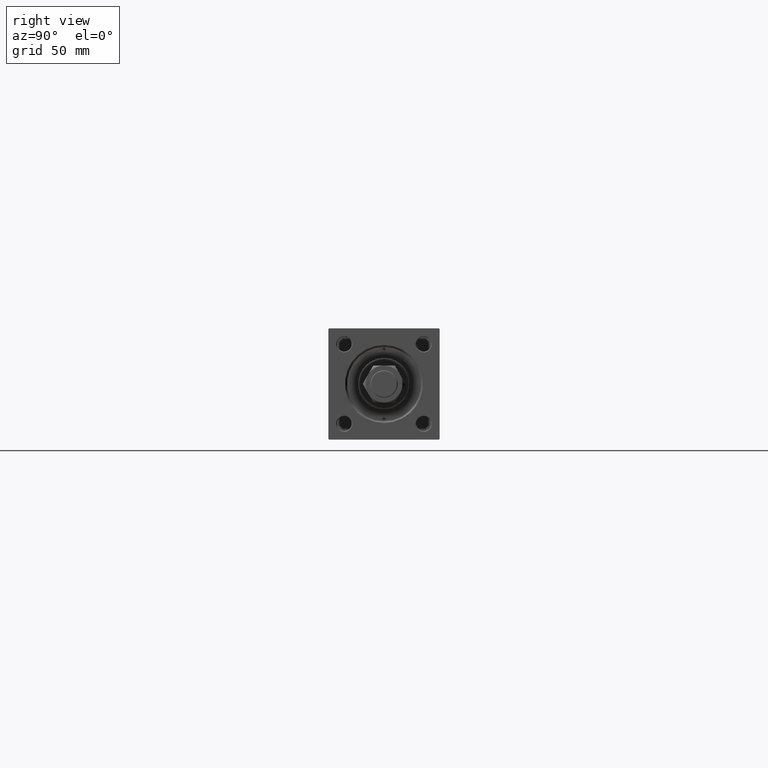
[diagram: clean part render]
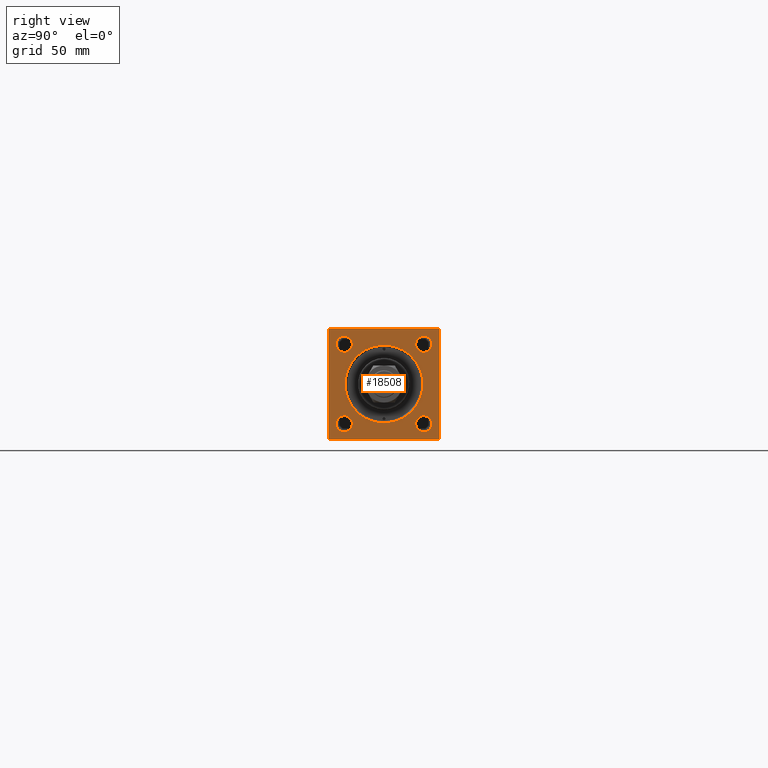
[diagram: same view with one face highlighted and labeled with its STEP entity id]
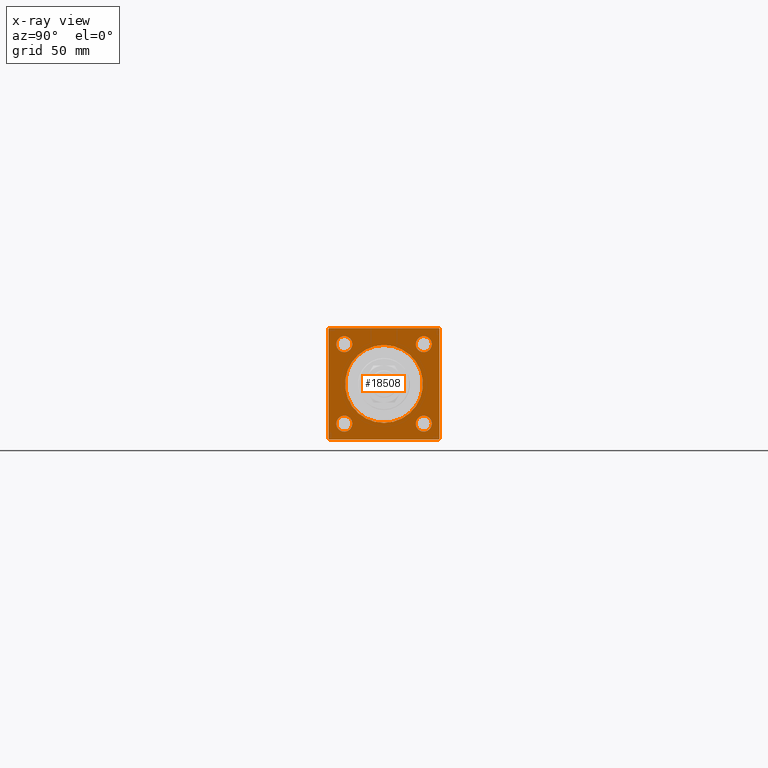
[diagram: x-ray of the same camera — body ghosted, the highlighted face saturated]
A machine part, right view. The second image highlights one B-rep face of the part: STEP entity #18508.
The next image is the same camera in x-ray: the body ghosted, the highlighted face saturated — about 0% of this face is hidden behind the body in this view.
In plain terms, the highlighted planar face has unit normal (-1, 0, 0).
Its self-contained STEP definition (entity closure, byte-faithful):
#464 = AXIS2_PLACEMENT_3D ( 'NONE', #23746, #3755, #35839 ) ;
#783 = CIRCLE ( 'NONE', #47861, 31.49999999999997158 ) ;
#1887 = DIRECTION ( 'NONE',  ( -1.000000000000000000, -0.000000000000000000, -0.000000000000000000 ) ) ;
#1899 = VERTEX_POINT ( 'NONE', #42348 ) ;
#1959 = ORIENTED_EDGE ( 'NONE', *, *, #29288, .T. ) ;
#2225 = VERTEX_POINT ( 'NONE', #23778 ) ;
#3096 = DIRECTION ( 'NONE',  ( -1.000000000000000000, -0.000000000000000000, -0.000000000000000000 ) ) ;
#3755 = DIRECTION ( 'NONE',  ( -1.000000000000000000, -0.000000000000000000, -0.000000000000000000 ) ) ;
#3829 = VERTEX_POINT ( 'NONE', #36399 ) ;
#4102 = VECTOR ( 'NONE', #15631, 1000.000000000000000 ) ;
#4209 = CARTESIAN_POINT ( 'NONE',  ( 485.0000000000000000, -44.49999999999997158, 44.99999999999998579 ) ) ;
#4418 = CARTESIAN_POINT ( 'NONE',  ( 485.0000000000000000, 32.14999999999999147, -38.65000000000012648 ) ) ;
#5127 = EDGE_CURVE ( 'NONE', #34431, #46237, #37075, .T. ) ;
#5428 = VERTEX_POINT ( 'NONE', #4209 ) ;
#5549 = EDGE_CURVE ( 'NONE', #5428, #2225, #37054, .T. ) ;
#6290 = VERTEX_POINT ( 'NONE', #48792 ) ;
#6608 = AXIS2_PLACEMENT_3D ( 'NONE', #47624, #11570, #16032 ) ;
#7727 = CARTESIAN_POINT ( 'NONE',  ( 485.0000000000000000, 32.14999999999999147, 25.64999999999989555 ) ) ;
#8022 = DIRECTION ( 'NONE',  ( 0.000000000000000000, 0.000000000000000000, 1.000000000000000000 ) ) ;
#8103 = EDGE_LOOP ( 'NONE', ( #27663, #13987 ) ) ;
#8250 = CARTESIAN_POINT ( 'NONE',  ( 485.0000000000000000, 44.49999999999990052, 45.00000000000000000 ) ) ;
#8306 = CARTESIAN_POINT ( 'NONE',  ( 485.0000000000000000, 45.00000000000001421, -44.49999999999991473 ) ) ;
#8896 = DIRECTION ( 'NONE',  ( 0.000000000000000000, -1.000000000000000000, 0.000000000000000000 ) ) ;
#9479 = VERTEX_POINT ( 'NONE', #16820 ) ;
#10212 = VECTOR ( 'NONE', #25231, 1000.000000000000000 ) ;
#10286 = DIRECTION ( 'NONE',  ( -1.000000000000000000, -0.000000000000000000, -0.000000000000000000 ) ) ;
#10636 = DIRECTION ( 'NONE',  ( 0.000000000000000000, 0.000000000000000000, 1.000000000000000000 ) ) ;
#10726 = ORIENTED_EDGE ( 'NONE', *, *, #51096, .T. ) ;
#11147 = VECTOR ( 'NONE', #50469, 1000.000000000000000 ) ;
#11400 = DIRECTION ( 'NONE',  ( -0.000000000000000000, 0.7071067811865081598, 0.7071067811865867636 ) ) ;
#11570 = DIRECTION ( 'NONE',  ( -1.000000000000000000, -0.000000000000000000, -0.000000000000000000 ) ) ;
#13321 = AXIS2_PLACEMENT_3D ( 'NONE', #43933, #51835, #39968 ) ;
#13607 = FACE_BOUND ( 'NONE', #36231, .T. ) ;
#13923 = CARTESIAN_POINT ( 'NONE',  ( 485.0000000000000000, -32.15000000000001279, -38.65000000000012648 ) ) ;
#13987 = ORIENTED_EDGE ( 'NONE', *, *, #5127, .T. ) ;
#14046 = DIRECTION ( 'NONE',  ( 0.000000000000000000, 0.000000000000000000, 1.000000000000000000 ) ) ;
#14584 = ORIENTED_EDGE ( 'NONE', *, *, #35922, .T. ) ;
#15631 = DIRECTION ( 'NONE',  ( 0.000000000000000000, -0.7071067811865867636, 0.7071067811865081598 ) ) ;
#15660 = DIRECTION ( 'NONE',  ( -1.000000000000000000, -0.000000000000000000, -0.000000000000000000 ) ) ;
#15863 = LINE ( 'NONE', #35067, #43948 ) ;
#16032 = DIRECTION ( 'NONE',  ( 0.000000000000000000, 0.000000000000000000, 1.000000000000000000 ) ) ;
#16654 = EDGE_CURVE ( 'NONE', #39213, #3829, #28789, .T. ) ;
#16820 = CARTESIAN_POINT ( 'NONE',  ( 485.0000000000000000, 3.857637417314158745E-15, 31.49999999999997158 ) ) ;
#16842 = ORIENTED_EDGE ( 'NONE', *, *, #30174, .T. ) ;
#16919 = CARTESIAN_POINT ( 'NONE',  ( 485.0000000000000000, -45.00000000000000000, 44.99999999999998579 ) ) ;
#17153 = ORIENTED_EDGE ( 'NONE', *, *, #30298, .T. ) ;
#18017 = DIRECTION ( 'NONE',  ( -1.000000000000000000, -0.000000000000000000, -0.000000000000000000 ) ) ;
#18380 = VECTOR ( 'NONE', #37419, 1000.000000000000000 ) ;
#18508 = ADVANCED_FACE ( 'NONE', ( #18599, #13607, #25718, #50190, #41763, #50713 ), #26232, .F. ) ;
#18599 = FACE_BOUND ( 'NONE', #23121, .T. ) ;
#18710 = ORIENTED_EDGE ( 'NONE', *, *, #25625, .T. ) ;
#19047 = VERTEX_POINT ( 'NONE', #31276 ) ;
#19436 = DIRECTION ( 'NONE',  ( 0.000000000000000000, 0.000000000000000000, 1.000000000000000000 ) ) ;
#19575 = LINE ( 'NONE', #8250, #4102 ) ;
#20483 = CARTESIAN_POINT ( 'NONE',  ( 485.0000000000000000, 0.000000000000000000, 0.000000000000000000 ) ) ;
#20563 = EDGE_CURVE ( 'NONE', #42021, #1899, #23168, .T. ) ;
#21290 = CIRCLE ( 'NONE', #36406, 6.500000000000110134 ) ;
#21384 = ORIENTED_EDGE ( 'NONE', *, *, #47681, .T. ) ;
#21643 = VERTEX_POINT ( 'NONE', #23753 ) ;
#21747 = VERTEX_POINT ( 'NONE', #40571 ) ;
#21894 = CARTESIAN_POINT ( 'NONE',  ( 485.0000000000000000, -44.99999999999999289, -44.49999999999997158 ) ) ;
#22209 = EDGE_LOOP ( 'NONE', ( #17153, #36537, #28086, #21384, #43607, #16842, #40065, #28546 ) ) ;
#22319 = EDGE_CURVE ( 'NONE', #21643, #29126, #45682, .T. ) ;
#23121 = EDGE_LOOP ( 'NONE', ( #30720, #24481 ) ) ;
#23168 = CIRCLE ( 'NONE', #464, 6.500000000000110134 ) ;
#23403 = CIRCLE ( 'NONE', #28427, 6.500000000000117240 ) ;
#23746 = CARTESIAN_POINT ( 'NONE',  ( 485.0000000000000000, 32.14999999999999147, 32.15000000000000568 ) ) ;
#23753 = CARTESIAN_POINT ( 'NONE',  ( 485.0000000000000000, 45.00000000000001421, 44.49999999999994316 ) ) ;
#23766 = CIRCLE ( 'NONE', #32985, 6.500000000000117240 ) ;
#23778 = CARTESIAN_POINT ( 'NONE',  ( 485.0000000000000000, -45.00000000000000000, 44.49999999999992895 ) ) ;
#23932 = CARTESIAN_POINT ( 'NONE',  ( 485.0000000000000000, -32.15000000000001279, -25.64999999999988844 ) ) ;
#24481 = ORIENTED_EDGE ( 'NONE', *, *, #48625, .T. ) ;
#24923 = VECTOR ( 'NONE', #49362, 1000.000000000000000 ) ;
#25231 = DIRECTION ( 'NONE',  ( -0.000000000000000000, -0.7071067811865081598, -0.7071067811865867636 ) ) ;
#25625 = EDGE_CURVE ( 'NONE', #6290, #26412, #44480, .T. ) ;
#25718 = FACE_BOUND ( 'NONE', #8103, .T. ) ;
#26104 = CARTESIAN_POINT ( 'NONE',  ( 485.0000000000000000, 32.14999999999999147, 32.15000000000000568 ) ) ;
#26232 = PLANE ( 'NONE',  #36552 ) ;
#26366 = DIRECTION ( 'NONE',  ( 0.000000000000000000, 0.000000000000000000, 1.000000000000000000 ) ) ;
#26412 = VERTEX_POINT ( 'NONE', #35126 ) ;
#26424 = CARTESIAN_POINT ( 'NONE',  ( 485.0000000000000000, 32.14999999999999147, -32.15000000000000568 ) ) ;
#26663 = DIRECTION ( 'NONE',  ( -1.000000000000000000, -0.000000000000000000, -0.000000000000000000 ) ) ;
#27268 = DIRECTION ( 'NONE',  ( -1.000000000000000000, 0.000000000000000000, -0.000000000000000000 ) ) ;
#27552 = CARTESIAN_POINT ( 'NONE',  ( 485.0000000000000000, 0.000000000000000000, 0.000000000000000000 ) ) ;
#27663 = ORIENTED_EDGE ( 'NONE', *, *, #34416, .T. ) ;
#28086 = ORIENTED_EDGE ( 'NONE', *, *, #42670, .F. ) ;
#28427 = AXIS2_PLACEMENT_3D ( 'NONE', #26424, #18017, #10636 ) ;
#28546 = ORIENTED_EDGE ( 'NONE', *, *, #5549, .T. ) ;
#28677 = VERTEX_POINT ( 'NONE', #4418 ) ;
#28789 = LINE ( 'NONE', #44867, #30586 ) ;
#28881 = LINE ( 'NONE', #44958, #48083 ) ;
#29126 = VERTEX_POINT ( 'NONE', #8306 ) ;
#29275 = CIRCLE ( 'NONE', #6608, 6.500000000000117240 ) ;
#29288 = EDGE_CURVE ( 'NONE', #50147, #28677, #23403, .T. ) ;
#30021 = ORIENTED_EDGE ( 'NONE', *, *, #34443, .T. ) ;
#30174 = EDGE_CURVE ( 'NONE', #21643, #40119, #19575, .T. ) ;
#30298 = EDGE_CURVE ( 'NONE', #2225, #39213, #44566, .T. ) ;
#30586 = VECTOR ( 'NONE', #49583, 1000.000000000000000 ) ;
#30625 = AXIS2_PLACEMENT_3D ( 'NONE', #20483, #52076, #19436 ) ;
#30720 = ORIENTED_EDGE ( 'NONE', *, *, #20563, .T. ) ;
#31187 = CARTESIAN_POINT ( 'NONE',  ( 485.0000000000000000, 32.14999999999999147, -25.64999999999988844 ) ) ;
#31276 = CARTESIAN_POINT ( 'NONE',  ( 485.0000000000000000, 0.000000000000000000, -31.49999999999997158 ) ) ;
#32009 = DIRECTION ( 'NONE',  ( 0.000000000000000000, 0.000000000000000000, 1.000000000000000000 ) ) ;
#32985 = AXIS2_PLACEMENT_3D ( 'NONE', #37708, #26663, #14046 ) ;
#33279 = CARTESIAN_POINT ( 'NONE',  ( 485.0000000000000000, 45.00000000000001421, 45.00000000000000000 ) ) ;
#34416 = EDGE_CURVE ( 'NONE', #46237, #34431, #29275, .T. ) ;
#34431 = VERTEX_POINT ( 'NONE', #23932 ) ;
#34443 = EDGE_CURVE ( 'NONE', #26412, #6290, #36004, .T. ) ;
#35067 = CARTESIAN_POINT ( 'NONE',  ( 485.0000000000000000, 45.00000000000001421, -44.49999999999994316 ) ) ;
#35126 = CARTESIAN_POINT ( 'NONE',  ( 485.0000000000000000, -32.14999999999999147, 38.65000000000010516 ) ) ;
#35839 = DIRECTION ( 'NONE',  ( 0.000000000000000000, 0.000000000000000000, 1.000000000000000000 ) ) ;
#35922 = EDGE_CURVE ( 'NONE', #9479, #19047, #783, .T. ) ;
#36004 = CIRCLE ( 'NONE', #13321, 6.500000000000117240 ) ;
#36231 = EDGE_LOOP ( 'NONE', ( #18710, #30021 ) ) ;
#36399 = CARTESIAN_POINT ( 'NONE',  ( 485.0000000000000000, -44.49999999999990052, -45.00000000000000000 ) ) ;
#36406 = AXIS2_PLACEMENT_3D ( 'NONE', #26104, #1887, #26366 ) ;
#36537 = ORIENTED_EDGE ( 'NONE', *, *, #16654, .T. ) ;
#36552 = AXIS2_PLACEMENT_3D ( 'NONE', #38829, #27268, #43325 ) ;
#37033 = LINE ( 'NONE', #44964, #11147 ) ;
#37054 = LINE ( 'NONE', #49973, #10212 ) ;
#37075 = CIRCLE ( 'NONE', #42959, 6.500000000000117240 ) ;
#37419 = DIRECTION ( 'NONE',  ( 0.000000000000000000, 7.709882115452478166E-17, -1.000000000000000000 ) ) ;
#37708 = CARTESIAN_POINT ( 'NONE',  ( 485.0000000000000000, 32.14999999999999147, -32.15000000000000568 ) ) ;
#38829 = CARTESIAN_POINT ( 'NONE',  ( 485.0000000000000000, 0.000000000000000000, 0.000000000000000000 ) ) ;
#39213 = VERTEX_POINT ( 'NONE', #21894 ) ;
#39968 = DIRECTION ( 'NONE',  ( 0.000000000000000000, 0.000000000000000000, 1.000000000000000000 ) ) ;
#40065 = ORIENTED_EDGE ( 'NONE', *, *, #43579, .T. ) ;
#40119 = VERTEX_POINT ( 'NONE', #49025 ) ;
#40456 = ORIENTED_EDGE ( 'NONE', *, *, #47556, .T. ) ;
#40571 = CARTESIAN_POINT ( 'NONE',  ( 485.0000000000000000, 44.50000000000001421, -45.00000000000000000 ) ) ;
#41763 = FACE_BOUND ( 'NONE', #45733, .T. ) ;
#41862 = CARTESIAN_POINT ( 'NONE',  ( 485.0000000000000000, -32.14999999999999147, 32.14999999999999147 ) ) ;
#42021 = VERTEX_POINT ( 'NONE', #7727 ) ;
#42348 = CARTESIAN_POINT ( 'NONE',  ( 485.0000000000000000, 32.14999999999999147, 38.65000000000011227 ) ) ;
#42670 = EDGE_CURVE ( 'NONE', #21747, #3829, #28881, .T. ) ;
#42959 = AXIS2_PLACEMENT_3D ( 'NONE', #47248, #15660, #8022 ) ;
#43325 = DIRECTION ( 'NONE',  ( -0.000000000000000000, 0.000000000000000000, 1.000000000000000000 ) ) ;
#43579 = EDGE_CURVE ( 'NONE', #40119, #5428, #37033, .T. ) ;
#43607 = ORIENTED_EDGE ( 'NONE', *, *, #22319, .F. ) ;
#43933 = CARTESIAN_POINT ( 'NONE',  ( 485.0000000000000000, -32.14999999999999147, 32.14999999999999147 ) ) ;
#43948 = VECTOR ( 'NONE', #11400, 1000.000000000000000 ) ;
#44480 = CIRCLE ( 'NONE', #50376, 6.500000000000117240 ) ;
#44566 = LINE ( 'NONE', #16919, #18380 ) ;
#44867 = CARTESIAN_POINT ( 'NONE',  ( 485.0000000000000000, -44.49999999999992895, -45.00000000000000000 ) ) ;
#44958 = CARTESIAN_POINT ( 'NONE',  ( 485.0000000000000000, 45.00000000000001421, -45.00000000000000000 ) ) ;
#44964 = CARTESIAN_POINT ( 'NONE',  ( 485.0000000000000000, 45.00000000000001421, 45.00000000000000000 ) ) ;
#45682 = LINE ( 'NONE', #33279, #24923 ) ;
#45733 = EDGE_LOOP ( 'NONE', ( #10726, #14584 ) ) ;
#45756 = CIRCLE ( 'NONE', #30625, 31.49999999999997158 ) ;
#46237 = VERTEX_POINT ( 'NONE', #13923 ) ;
#46557 = EDGE_LOOP ( 'NONE', ( #40456, #1959 ) ) ;
#47248 = CARTESIAN_POINT ( 'NONE',  ( 485.0000000000000000, -32.15000000000001279, -32.15000000000000568 ) ) ;
#47556 = EDGE_CURVE ( 'NONE', #28677, #50147, #23766, .T. ) ;
#47624 = CARTESIAN_POINT ( 'NONE',  ( 485.0000000000000000, -32.15000000000001279, -32.15000000000000568 ) ) ;
#47681 = EDGE_CURVE ( 'NONE', #21747, #29126, #15863, .T. ) ;
#47861 = AXIS2_PLACEMENT_3D ( 'NONE', #27552, #3096, #32009 ) ;
#48083 = VECTOR ( 'NONE', #8896, 1000.000000000000000 ) ;
#48625 = EDGE_CURVE ( 'NONE', #1899, #42021, #21290, .T. ) ;
#48792 = CARTESIAN_POINT ( 'NONE',  ( 485.0000000000000000, -32.14999999999999147, 25.64999999999987423 ) ) ;
#49025 = CARTESIAN_POINT ( 'NONE',  ( 485.0000000000000000, 44.49999999999990052, 45.00000000000000000 ) ) ;
#49362 = DIRECTION ( 'NONE',  ( 0.000000000000000000, 0.000000000000000000, -1.000000000000000000 ) ) ;
#49583 = DIRECTION ( 'NONE',  ( 0.000000000000000000, 0.7071067811865916486, -0.7071067811865033859 ) ) ;
#49973 = CARTESIAN_POINT ( 'NONE',  ( 485.0000000000000000, -45.00000000000000000, 44.49999999999992895 ) ) ;
#50029 = DIRECTION ( 'NONE',  ( 0.000000000000000000, 0.000000000000000000, 1.000000000000000000 ) ) ;
#50147 = VERTEX_POINT ( 'NONE', #31187 ) ;
#50190 = FACE_BOUND ( 'NONE', #46557, .T. ) ;
#50376 = AXIS2_PLACEMENT_3D ( 'NONE', #41862, #10286, #50029 ) ;
#50469 = DIRECTION ( 'NONE',  ( 0.000000000000000000, -1.000000000000000000, -1.541976423090495140E-16 ) ) ;
#50713 = FACE_OUTER_BOUND ( 'NONE', #22209, .T. ) ;
#51096 = EDGE_CURVE ( 'NONE', #19047, #9479, #45756, .T. ) ;
#51835 = DIRECTION ( 'NONE',  ( -1.000000000000000000, -0.000000000000000000, -0.000000000000000000 ) ) ;
#52076 = DIRECTION ( 'NONE',  ( -1.000000000000000000, -0.000000000000000000, -0.000000000000000000 ) ) ;